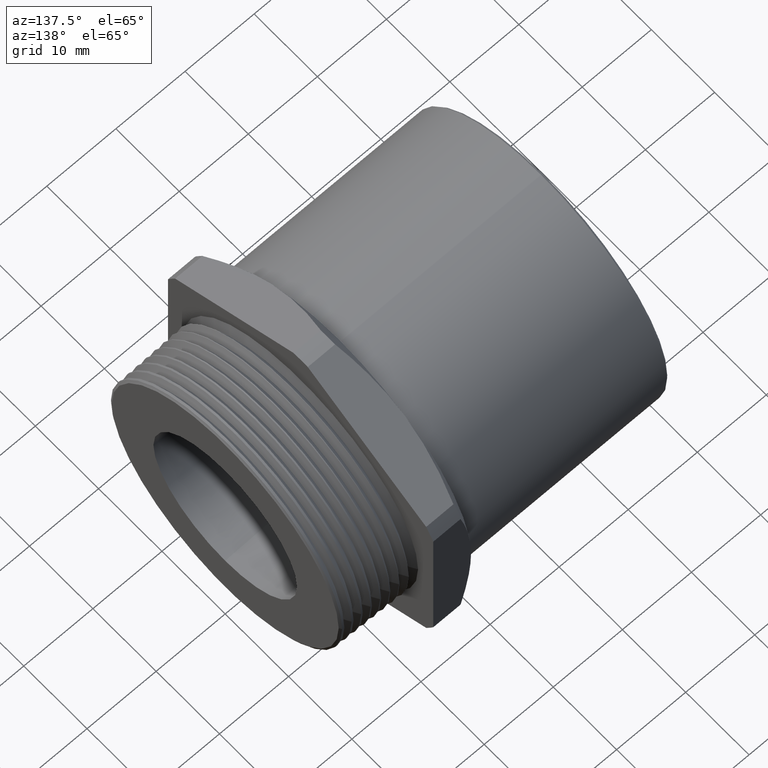
[diagram: clean part render]
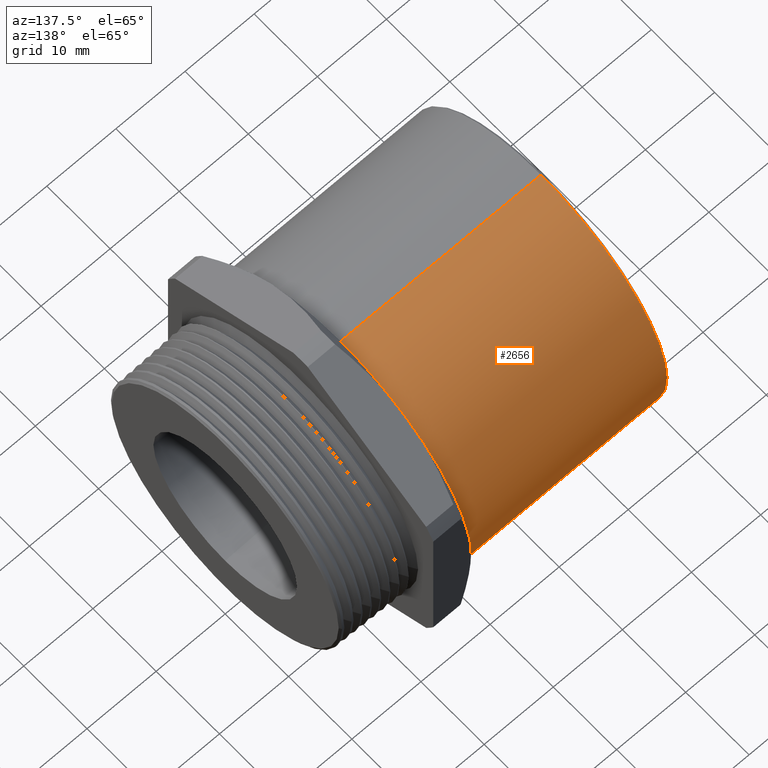
[diagram: same view with one face highlighted and labeled with its STEP entity id]
A machine part, auxiliary view. The second image highlights one B-rep face of the part: STEP entity #2656.
In plain terms, the highlighted cylindrical surface (partial cylindrical patch) has radius 19.9072 mm, axis along (-1, 0, 0).
Its self-contained STEP definition (entity closure, byte-faithful):
#771 = VERTEX_POINT ( 'NONE', #2290 ) ;
#773 = EDGE_CURVE ( 'NONE', #774, #771, #2289, .T. ) ;
#774 = VERTEX_POINT ( 'NONE', #2284 ) ;
#2284 = CARTESIAN_POINT ( 'NONE',  ( -1.799999999999999600, 9.598169288317378900E-017, -0.7837499999999998400 ) ) ;
#2285 = DIRECTION ( 'NONE',  ( 0.0000000000000000000, 0.0000000000000000000, -1.000000000000000000 ) ) ;
#2286 = DIRECTION ( 'NONE',  ( 1.000000000000000000, 0.0000000000000000000, 0.0000000000000000000 ) ) ;
#2287 = CARTESIAN_POINT ( 'NONE',  ( -1.799999999999999600, 0.0000000000000000000, 0.0000000000000000000 ) ) ;
#2288 = AXIS2_PLACEMENT_3D ( 'NONE', #2287, #2286, #2285 ) ;
#2289 = CIRCLE ( 'NONE', #2288, 0.7837499999999998400 ) ;
#2290 = CARTESIAN_POINT ( 'NONE',  ( -1.799999999999999600, 0.0000000000000000000, 0.7837499999999998400 ) ) ;
#2522 = CARTESIAN_POINT ( 'NONE',  ( -0.6449999999999998000, 0.0000000000000000000, 0.7837499999999998400 ) ) ;
#2523 = CARTESIAN_POINT ( 'NONE',  ( -0.6449999999999998000, 9.598169288317378900E-017, -0.7837499999999998400 ) ) ;
#2533 = DIRECTION ( 'NONE',  ( 0.0000000000000000000, 0.0000000000000000000, 1.000000000000000000 ) ) ;
#2534 = DIRECTION ( 'NONE',  ( -1.000000000000000000, 0.0000000000000000000, 0.0000000000000000000 ) ) ;
#2535 = AXIS2_PLACEMENT_3D ( 'NONE', #2542, #2534, #2533 ) ;
#2536 = CIRCLE ( 'NONE', #2535, 0.7837499999999998400 ) ;
#2537 = DIRECTION ( 'NONE',  ( 0.0000000000000000000, 0.0000000000000000000, 1.000000000000000000 ) ) ;
#2538 = DIRECTION ( 'NONE',  ( -1.000000000000000000, 0.0000000000000000000, 0.0000000000000000000 ) ) ;
#2539 = CARTESIAN_POINT ( 'NONE',  ( -0.5911096051061856000, 0.0000000000000000000, 0.0000000000000000000 ) ) ;
#2540 = AXIS2_PLACEMENT_3D ( 'NONE', #2539, #2538, #2537 ) ;
#2541 = CYLINDRICAL_SURFACE ( 'NONE', #2540, 0.7837499999999998400 ) ;
#2542 = CARTESIAN_POINT ( 'NONE',  ( -0.6449999999999998000, 0.0000000000000000000, 0.0000000000000000000 ) ) ;
#2543 = FACE_OUTER_BOUND ( 'NONE', #2657, .T. ) ;
#2544 = DIRECTION ( 'NONE',  ( -1.000000000000000000, 0.0000000000000000000, 0.0000000000000000000 ) ) ;
#2545 = VECTOR ( 'NONE', #2544, 39.37007874015748100 ) ;
#2546 = CARTESIAN_POINT ( 'NONE',  ( -0.5911096051061856000, 9.598169288317378900E-017, -0.7837499999999998400 ) ) ;
#2552 = LINE ( 'NONE', #2546, #2545 ) ;
#2554 = DIRECTION ( 'NONE',  ( -1.000000000000000000, 0.0000000000000000000, 0.0000000000000000000 ) ) ;
#2555 = VECTOR ( 'NONE', #2554, 39.37007874015748100 ) ;
#2556 = CARTESIAN_POINT ( 'NONE',  ( -0.5911096051061856000, 0.0000000000000000000, 0.7837499999999998400 ) ) ;
#2557 = LINE ( 'NONE', #2556, #2555 ) ;
#2634 = VERTEX_POINT ( 'NONE', #2523 ) ;
#2635 = VERTEX_POINT ( 'NONE', #2522 ) ;
#2650 = ORIENTED_EDGE ( 'NONE', *, *, #773, .T. ) ;
#2651 = ORIENTED_EDGE ( 'NONE', *, *, #2652, .F. ) ;
#2652 = EDGE_CURVE ( 'NONE', #2635, #771, #2557, .T. ) ;
#2654 = ORIENTED_EDGE ( 'NONE', *, *, #2655, .T. ) ;
#2655 = EDGE_CURVE ( 'NONE', #2634, #774, #2552, .T. ) ;
#2656 = ADVANCED_FACE ( 'NONE', ( #2543 ), #2541, .T. ) ;
#2657 = EDGE_LOOP ( 'NONE', ( #2659, #2654, #2650, #2651 ) ) ;
#2658 = EDGE_CURVE ( 'NONE', #2635, #2634, #2536, .T. ) ;
#2659 = ORIENTED_EDGE ( 'NONE', *, *, #2658, .T. ) ;